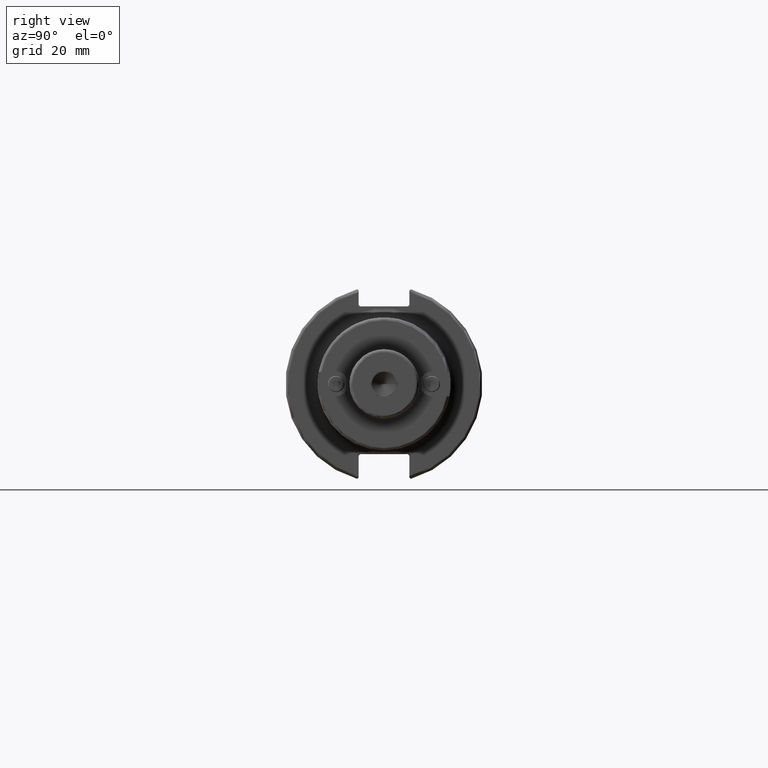
[diagram: clean part render]
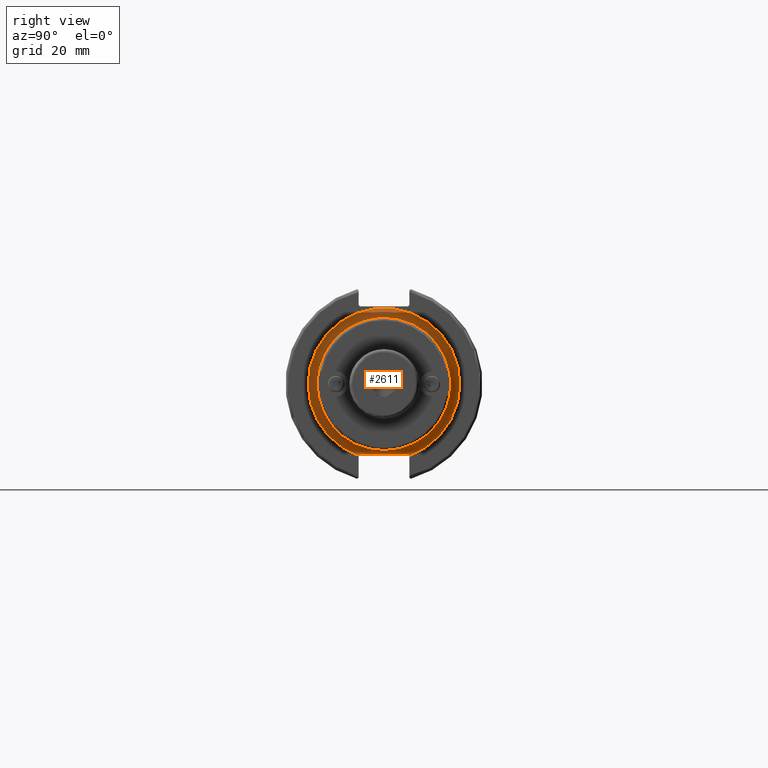
[diagram: same view with one face highlighted and labeled with its STEP entity id]
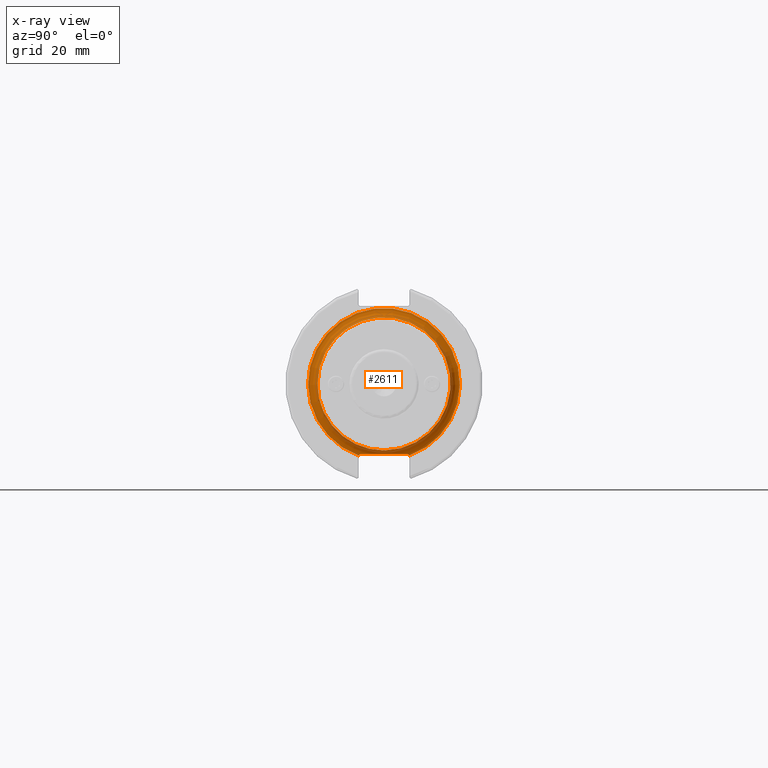
[diagram: x-ray of the same camera — body ghosted, the highlighted face saturated]
A machine part, right view. The second image highlights one B-rep face of the part: STEP entity #2611.
The next image is the same camera in x-ray: the body ghosted, the highlighted face saturated — about 2% of this face is hidden behind the body in this view.
In plain terms, the highlighted toroidal blend (fillet) surface has major radius 24.44 mm and minor (blend) radius 3 mm.
Its self-contained STEP definition (entity closure, byte-faithful):
#99=TOROIDAL_SURFACE('',#2901,24.44,3.);
#184=B_SPLINE_CURVE_WITH_KNOTS('',3,(#4236,#4237,#4238,#4239,#4240,#4241,
#4242,#4243),.UNSPECIFIED.,.F.,.F.,(4,2,2,4),(3.17820826926947,3.47573668495417,
3.77326510063888,3.90232460966406),.UNSPECIFIED.);
#185=B_SPLINE_CURVE_WITH_KNOTS('',3,(#4245,#4246,#4247,#4248),
 .UNSPECIFIED.,.F.,.F.,(4,4),(1.35061913230684,1.41046084212242),
 .UNSPECIFIED.);
#186=B_SPLINE_CURVE_WITH_KNOTS('',3,(#4252,#4253,#4254,#4255),
 .UNSPECIFIED.,.F.,.F.,(4,4),(0.465998510199877,0.525840219604773),
 .UNSPECIFIED.);
#187=B_SPLINE_CURVE_WITH_KNOTS('',3,(#4256,#4257,#4258,#4259,#4260,#4261,
#4262,#4263),.UNSPECIFIED.,.F.,.F.,(4,2,2,4),(2.45409192849505,2.58315143790005,
2.88067985358476,3.17820826926947),.UNSPECIFIED.);
#265=FACE_OUTER_BOUND('',#426,.T.);
#426=EDGE_LOOP('',(#1843,#1844,#1845,#1846,#1847,#1848,#1849,#1850,#1851));
#928=CIRCLE('',#2858,21.44);
#929=CIRCLE('',#2859,21.44);
#954=CIRCLE('',#2902,3.);
#955=CIRCLE('',#2903,24.44);
#1076=VERTEX_POINT('',#4047);
#1077=VERTEX_POINT('',#4049);
#1109=VERTEX_POINT('',#4233);
#1110=VERTEX_POINT('',#4235);
#1111=VERTEX_POINT('',#4244);
#1112=VERTEX_POINT('',#4249);
#1113=VERTEX_POINT('',#4251);
#1343=EDGE_CURVE('',#1077,#1076,#928,.T.);
#1344=EDGE_CURVE('',#1076,#1077,#929,.T.);
#1391=EDGE_CURVE('',#1077,#1109,#954,.T.);
#1392=EDGE_CURVE('',#1110,#1109,#184,.F.);
#1393=EDGE_CURVE('',#1111,#1110,#185,.F.);
#1394=EDGE_CURVE('',#1111,#1112,#955,.T.);
#1395=EDGE_CURVE('',#1113,#1112,#186,.F.);
#1396=EDGE_CURVE('',#1109,#1113,#187,.F.);
#1843=ORIENTED_EDGE('',*,*,#1344,.T.);
#1844=ORIENTED_EDGE('',*,*,#1391,.T.);
#1845=ORIENTED_EDGE('',*,*,#1392,.F.);
#1846=ORIENTED_EDGE('',*,*,#1393,.F.);
#1847=ORIENTED_EDGE('',*,*,#1394,.T.);
#1848=ORIENTED_EDGE('',*,*,#1395,.F.);
#1849=ORIENTED_EDGE('',*,*,#1396,.F.);
#1850=ORIENTED_EDGE('',*,*,#1391,.F.);
#1851=ORIENTED_EDGE('',*,*,#1343,.T.);
#2611=ADVANCED_FACE('',(#265),#99,.F.);
#2858=AXIS2_PLACEMENT_3D('',#4050,#3208,#3209);
#2859=AXIS2_PLACEMENT_3D('',#4051,#3210,#3211);
#2901=AXIS2_PLACEMENT_3D('',#4232,#3310,#3311);
#2902=AXIS2_PLACEMENT_3D('',#4234,#3312,#3313);
#2903=AXIS2_PLACEMENT_3D('',#4250,#3314,#3315);
#3208=DIRECTION('center_axis',(-1.,0.,0.));
#3209=DIRECTION('ref_axis',(0.,-1.,-1.22464679914735E-16));
#3210=DIRECTION('center_axis',(-1.,0.,0.));
#3211=DIRECTION('ref_axis',(0.,-1.,-1.22464679914735E-16));
#3310=DIRECTION('center_axis',(-1.,0.,0.));
#3311=DIRECTION('ref_axis',(0.,0.,1.));
#3312=DIRECTION('center_axis',(0.,-1.,1.22464679914735E-16));
#3313=DIRECTION('ref_axis',(0.,-1.22464679914735E-16,-1.));
#3314=DIRECTION('center_axis',(1.,0.,0.));
#3315=DIRECTION('ref_axis',(0.,-1.,-1.22464679914735E-16));
#4047=CARTESIAN_POINT('',(22.05,-21.44,-2.62564273737193E-15));
#4049=CARTESIAN_POINT('',(22.05,-2.62564273737193E-15,-21.44));
#4050=CARTESIAN_POINT('Origin',(22.05,0.,0.));
#4051=CARTESIAN_POINT('Origin',(22.05,0.,0.));
#4232=CARTESIAN_POINT('Origin',(22.05,0.,0.));
#4233=CARTESIAN_POINT('',(19.6805274848608,-1.10629512688022E-15,-22.6));
#4234=CARTESIAN_POINT('Origin',(22.05,-2.99303677711613E-15,-24.44));
#4235=CARTESIAN_POINT('',(19.104165646948,7.69000000005452,-22.6000000000182));
#4236=CARTESIAN_POINT('Ctrl Pts',(19.6805274848608,5.55111512312578E-16,
-22.6));
#4237=CARTESIAN_POINT('Ctrl Pts',(19.6805274848608,0.99176138561569,-22.6));
#4238=CARTESIAN_POINT('Ctrl Pts',(19.6212004437599,2.07946279789332,-22.6));
#4239=CARTESIAN_POINT('Ctrl Pts',(19.4281399782644,4.25021896625356,-22.6));
#4240=CARTESIAN_POINT('Ctrl Pts',(19.3031677959524,5.33404401211898,-22.6));
#4241=CARTESIAN_POINT('Ctrl Pts',(19.1724628573142,6.74998389321754,-22.6));
#4242=CARTESIAN_POINT('Ctrl Pts',(19.1334444823363,7.21819205193497,-22.6));
#4243=CARTESIAN_POINT('Ctrl Pts',(19.1041656469491,7.69000000005449,-22.6));
#4244=CARTESIAN_POINT('',(19.05,8.13601584246517,-23.0460158424652));
#4245=CARTESIAN_POINT('Ctrl Pts',(19.1041656469437,7.69000000003582,-22.6000000000358));
#4246=CARTESIAN_POINT('Ctrl Pts',(19.0670954915416,7.84165716318229,-22.7516571631823));
#4247=CARTESIAN_POINT('Ctrl Pts',(19.05,7.99496757977053,-22.9049675797705));
#4248=CARTESIAN_POINT('Ctrl Pts',(19.05,8.13601584246517,-23.0460158424652));
#4249=CARTESIAN_POINT('',(19.05,-8.13601584246517,-23.0460158424652));
#4250=CARTESIAN_POINT('Origin',(19.05,0.,0.));
#4251=CARTESIAN_POINT('',(19.1041656459323,-7.69000000417386,-22.6000000020869));
#4252=CARTESIAN_POINT('Ctrl Pts',(19.05,-8.13601584246517,-23.0460158424652));
#4253=CARTESIAN_POINT('Ctrl Pts',(19.05,-7.99496758073852,-22.9049675807385));
#4254=CARTESIAN_POINT('Ctrl Pts',(19.0670954912941,-7.84165716528751,-22.7516571652875));
#4255=CARTESIAN_POINT('Ctrl Pts',(19.1041656461799,-7.69000000316091,-22.6000000031609));
#4256=CARTESIAN_POINT('Ctrl Pts',(19.1041656466906,-7.69000000422027,-22.6));
#4257=CARTESIAN_POINT('Ctrl Pts',(19.1334444821077,-7.21819205469107,-22.6));
#4258=CARTESIAN_POINT('Ctrl Pts',(19.1724628571978,-6.74998389447826,-22.6));
#4259=CARTESIAN_POINT('Ctrl Pts',(19.3031677959524,-5.33404401211898,-22.6));
#4260=CARTESIAN_POINT('Ctrl Pts',(19.4281399782644,-4.25021896625356,-22.6));
#4261=CARTESIAN_POINT('Ctrl Pts',(19.6212004437599,-2.07946279789332,-22.6));
#4262=CARTESIAN_POINT('Ctrl Pts',(19.6805274848608,-0.99176138561569,-22.6));
#4263=CARTESIAN_POINT('Ctrl Pts',(19.6805274848608,-5.55111512312578E-16,
-22.6));